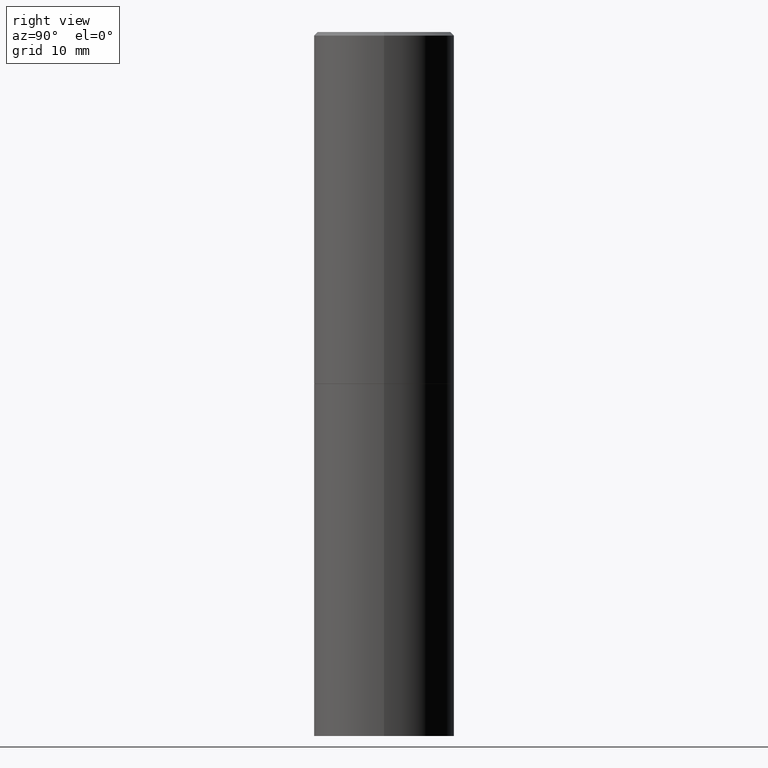
[diagram: clean part render]
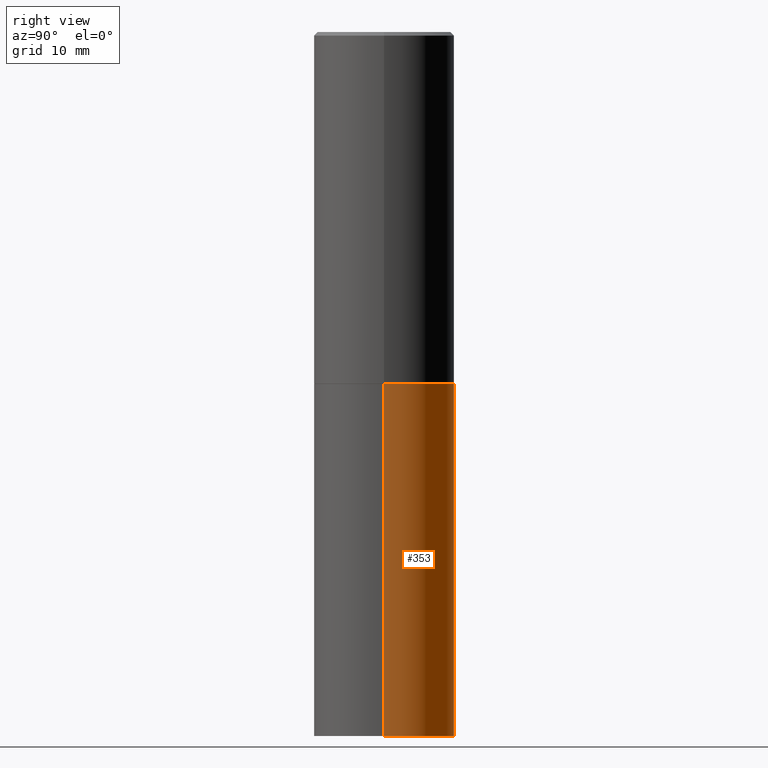
[diagram: same view with one face highlighted and labeled with its STEP entity id]
A machine part, right view. The second image highlights one B-rep face of the part: STEP entity #353.
In plain terms, the highlighted cylindrical surface (partial cylindrical patch) has radius 10 mm, axis along (-0, 0, 1).
Its self-contained STEP definition (entity closure, byte-faithful):
#30 = DIRECTION ( 'NONE',  ( 1.000000000000000000, -6.982962677686267499E-15, 0.000000000000000000 ) ) ;
#65 = AXIS2_PLACEMENT_3D ( 'NONE', #166, #281, #364 ) ;
#68 = DIRECTION ( 'NONE',  ( -2.445468806185136877E-29, 3.491481338843145188E-15, 1.000000000000000000 ) ) ;
#70 = DIRECTION ( 'NONE',  ( -2.445468806185136597E-29, 3.491481338843145583E-15, 1.000000000000000000 ) ) ;
#93 = CARTESIAN_POINT ( 'NONE',  ( 0.3937000000000000499, -9.622173421717814924E-15, -1.968500000000000139 ) ) ;
#105 = AXIS2_PLACEMENT_3D ( 'NONE', #266, #70, #296 ) ;
#131 = VERTEX_POINT ( 'NONE', #93 ) ;
#136 = VERTEX_POINT ( 'NONE', #318 ) ;
#146 = EDGE_CURVE ( 'NONE', #136, #347, #192, .T. ) ;
#153 = CARTESIAN_POINT ( 'NONE',  ( 9.627810689950883669E-29, -1.374596203102546341E-14, -3.937000000000000277 ) ) ;
#155 = AXIS2_PLACEMENT_3D ( 'NONE', #153, #310, #30 ) ;
#159 = VECTOR ( 'NONE', #68, 39.37007874015748143 ) ;
#164 = EDGE_CURVE ( 'NONE', #347, #246, #349, .T. ) ;
#166 = CARTESIAN_POINT ( 'NONE',  ( 4.813905344975441835E-29, -6.872981015512731707E-15, -1.968500000000000139 ) ) ;
#178 = CARTESIAN_POINT ( 'NONE',  ( -0.3937000000000000499, -7.512064772581583563E-15, -3.937000000000000277 ) ) ;
#192 = CIRCLE ( 'NONE', #155, 0.3937000000000000499 ) ;
#204 = CARTESIAN_POINT ( 'NONE',  ( -0.3937000000000000499, -7.512064772581583563E-15, -1.968500000000000139 ) ) ;
#205 = DIRECTION ( 'NONE',  ( -2.445468806185136877E-29, 3.491481338843145188E-15, 1.000000000000000000 ) ) ;
#213 = ORIENTED_EDGE ( 'NONE', *, *, #146, .T. ) ;
#216 = EDGE_CURVE ( 'NONE', #131, #246, #339, .T. ) ;
#236 = CARTESIAN_POINT ( 'NONE',  ( -0.3937000000000000499, 2.797406750687514786E-15, -1.936584745033356735E-29 ) ) ;
#246 = VERTEX_POINT ( 'NONE', #204 ) ;
#264 = FACE_OUTER_BOUND ( 'NONE', #359, .T. ) ;
#266 = CARTESIAN_POINT ( 'NONE',  ( 0.000000000000000000, 0.000000000000000000, 0.000000000000000000 ) ) ;
#276 = ORIENTED_EDGE ( 'NONE', *, *, #216, .F. ) ;
#281 = DIRECTION ( 'NONE',  ( -2.445468806185136597E-29, 3.491481338843145583E-15, 1.000000000000000000 ) ) ;
#282 = EDGE_CURVE ( 'NONE', #136, #131, #346, .T. ) ;
#291 = VECTOR ( 'NONE', #205, 39.37007874015748143 ) ;
#296 = DIRECTION ( 'NONE',  ( 1.000000000000000000, -6.982962677686265922E-15, 4.876176775795935793E-29 ) ) ;
#302 = ORIENTED_EDGE ( 'NONE', *, *, #164, .T. ) ;
#310 = DIRECTION ( 'NONE',  ( -2.445468806185136597E-29, 3.491481338843145583E-15, 1.000000000000000000 ) ) ;
#318 = CARTESIAN_POINT ( 'NONE',  ( 0.3937000000000000499, -1.649515443723054663E-14, -3.937000000000000277 ) ) ;
#321 = CARTESIAN_POINT ( 'NONE',  ( 0.3937000000000000499, -2.749192406205083217E-15, 1.919750796630860172E-29 ) ) ;
#323 = CYLINDRICAL_SURFACE ( 'NONE', #105, 0.3937000000000000499 ) ;
#332 = ORIENTED_EDGE ( 'NONE', *, *, #282, .F. ) ;
#339 = CIRCLE ( 'NONE', #65, 0.3937000000000000499 ) ;
#346 = LINE ( 'NONE', #321, #159 ) ;
#347 = VERTEX_POINT ( 'NONE', #178 ) ;
#349 = LINE ( 'NONE', #236, #291 ) ;
#353 = ADVANCED_FACE ( 'NONE', ( #264 ), #323, .T. ) ;
#359 = EDGE_LOOP ( 'NONE', ( #213, #302, #276, #332 ) ) ;
#364 = DIRECTION ( 'NONE',  ( 1.000000000000000000, -6.982962677686265133E-15, 0.000000000000000000 ) ) ;